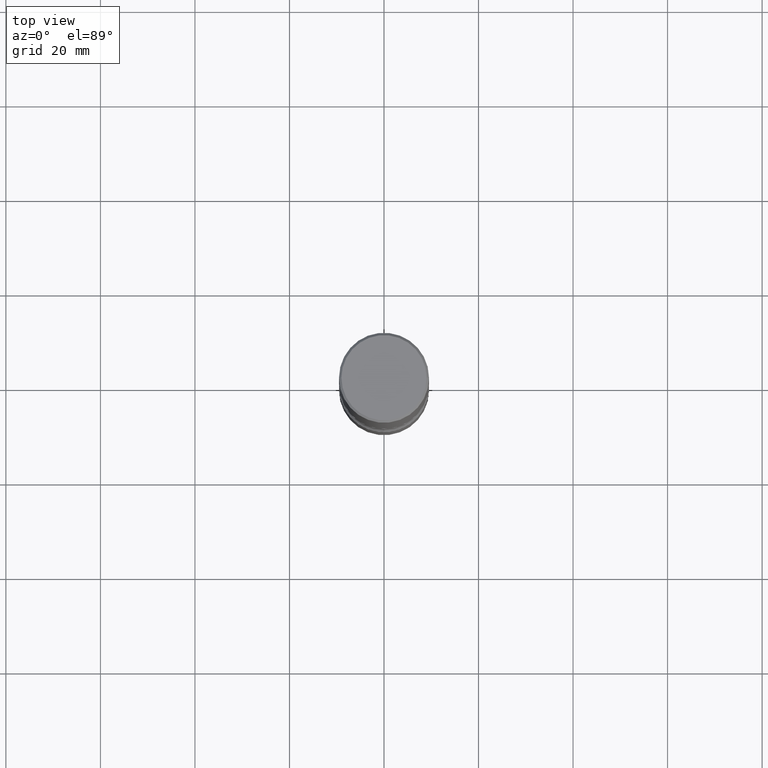
[diagram: clean part render]
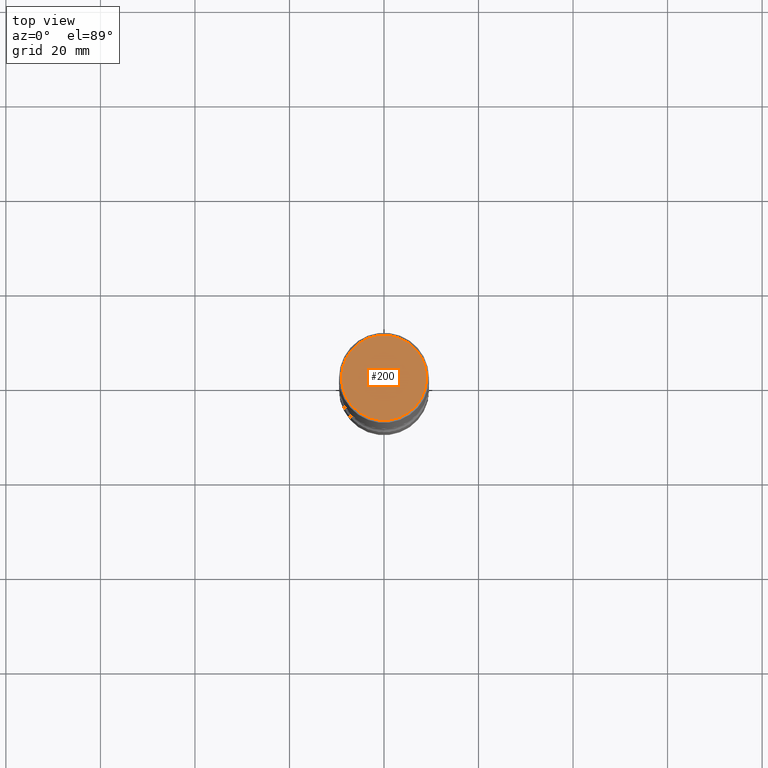
[diagram: same view with one face highlighted and labeled with its STEP entity id]
A machine part, top view. The second image highlights one B-rep face of the part: STEP entity #200.
In plain terms, the highlighted planar face has unit normal (0, -0, -1).
Its self-contained STEP definition (entity closure, byte-faithful):
#24 = EDGE_CURVE ( 'NONE', #107, #53, #98, .T. ) ;
#53 = VERTEX_POINT ( 'NONE', #462 ) ;
#60 = CARTESIAN_POINT ( 'NONE',  ( -1.043851414335219820E-46, 1.490343170380447200E-32, 4.268512490100411279E-18 ) ) ;
#64 = AXIS2_PLACEMENT_3D ( 'NONE', #447, #193, #309 ) ;
#78 = CARTESIAN_POINT ( 'NONE',  ( -1.043851414335219820E-46, 1.490343170380447200E-32, 4.268512490100411279E-18 ) ) ;
#98 = CIRCLE ( 'NONE', #113, 0.3550000000000000377 ) ;
#107 = VERTEX_POINT ( 'NONE', #528 ) ;
#113 = AXIS2_PLACEMENT_3D ( 'NONE', #60, #421, #205 ) ;
#115 = AXIS2_PLACEMENT_3D ( 'NONE', #78, #489, #444 ) ;
#149 = EDGE_CURVE ( 'NONE', #53, #107, #551, .T. ) ;
#193 = DIRECTION ( 'NONE',  ( 2.438088387897960049E-29, -3.491481338843145188E-15, -1.000000000000000000 ) ) ;
#200 = ADVANCED_FACE ( 'NONE', ( #348 ), #313, .F. ) ;
#205 = DIRECTION ( 'NONE',  ( 1.000000000000000000, -6.982962677686266711E-15, 4.876231632511987623E-29 ) ) ;
#265 = ORIENTED_EDGE ( 'NONE', *, *, #149, .T. ) ;
#309 = DIRECTION ( 'NONE',  ( -1.000000000000000000, 6.982962677686265922E-15, -4.876176775795935793E-29 ) ) ;
#313 = PLANE ( 'NONE',  #64 ) ;
#348 = FACE_OUTER_BOUND ( 'NONE', #460, .T. ) ;
#416 = ORIENTED_EDGE ( 'NONE', *, *, #24, .T. ) ;
#421 = DIRECTION ( 'NONE',  ( -2.445468806185136597E-29, 3.491481338843145583E-15, 1.000000000000000000 ) ) ;
#444 = DIRECTION ( 'NONE',  ( 1.000000000000000000, -6.982962677686266711E-15, 4.876231632511987623E-29 ) ) ;
#447 = CARTESIAN_POINT ( 'NONE',  ( 2.478951750578624998E-15, 0.3550000000000000377, -1.237341619044266624E-15 ) ) ;
#460 = EDGE_LOOP ( 'NONE', ( #265, #416 ) ) ;
#462 = CARTESIAN_POINT ( 'NONE',  ( -0.3550000000000000377, 2.513866563967055858E-15, 4.268512490082953109E-18 ) ) ;
#489 = DIRECTION ( 'NONE',  ( -2.445468806185136597E-29, 3.491481338843145583E-15, 1.000000000000000000 ) ) ;
#528 = CARTESIAN_POINT ( 'NONE',  ( 0.3550000000000000377, -2.538996582575041048E-15, 4.268512490117958041E-18 ) ) ;
#551 = CIRCLE ( 'NONE', #115, 0.3550000000000000377 ) ;